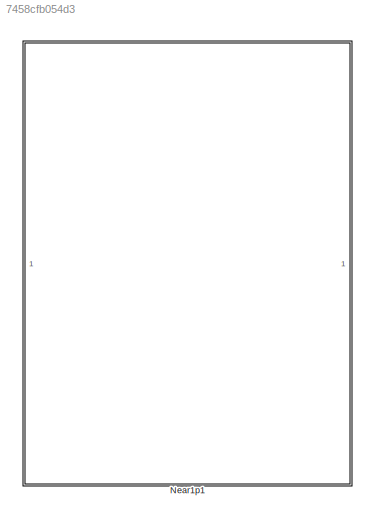
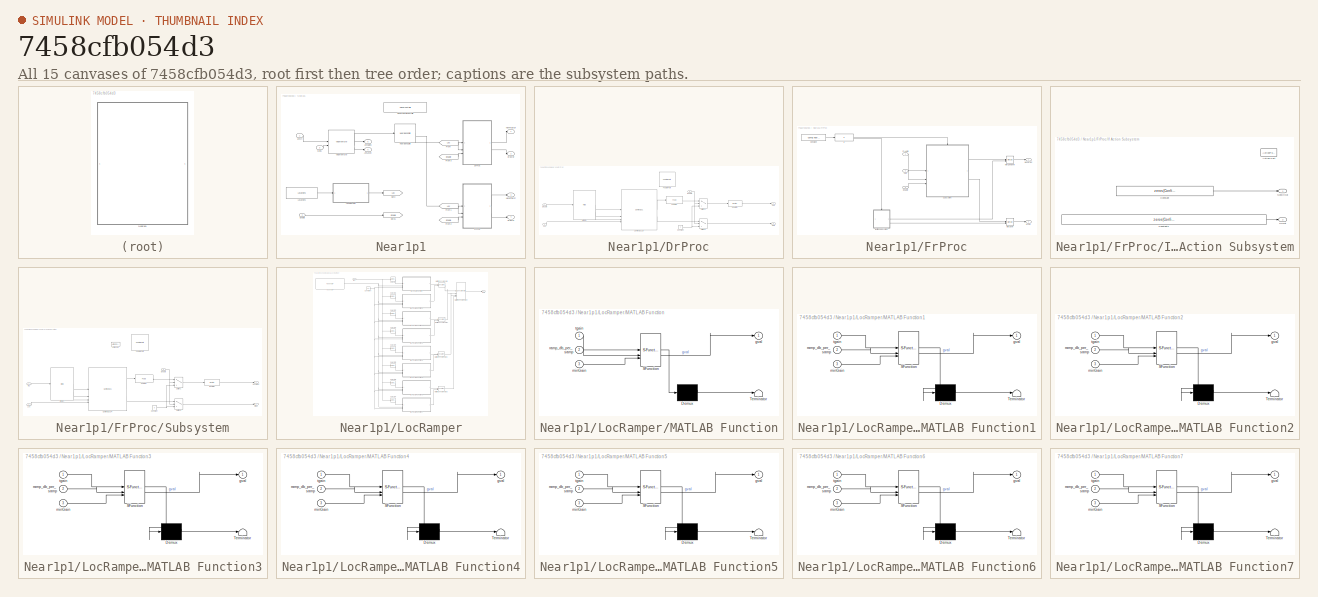
[diagram: thumbnail index - all 15 canvases of the model, root first then tree order]
MODEL slx_7458cfb054d3
KIND library
CONFIG AbsTol = auto
CONFIG EnableMultiTasking = off
CONFIG FixedStep = auto
CONFIG MaxStep = auto
CONFIG MinStep = auto
CONFIG RelTol = 1e-3
CONFIG SampleTimeConstraint = Unconstrained
CONFIG SolverName = VariableStepAuto
CONFIG StartTime = 0.0
CONFIG StopTime = 10.0
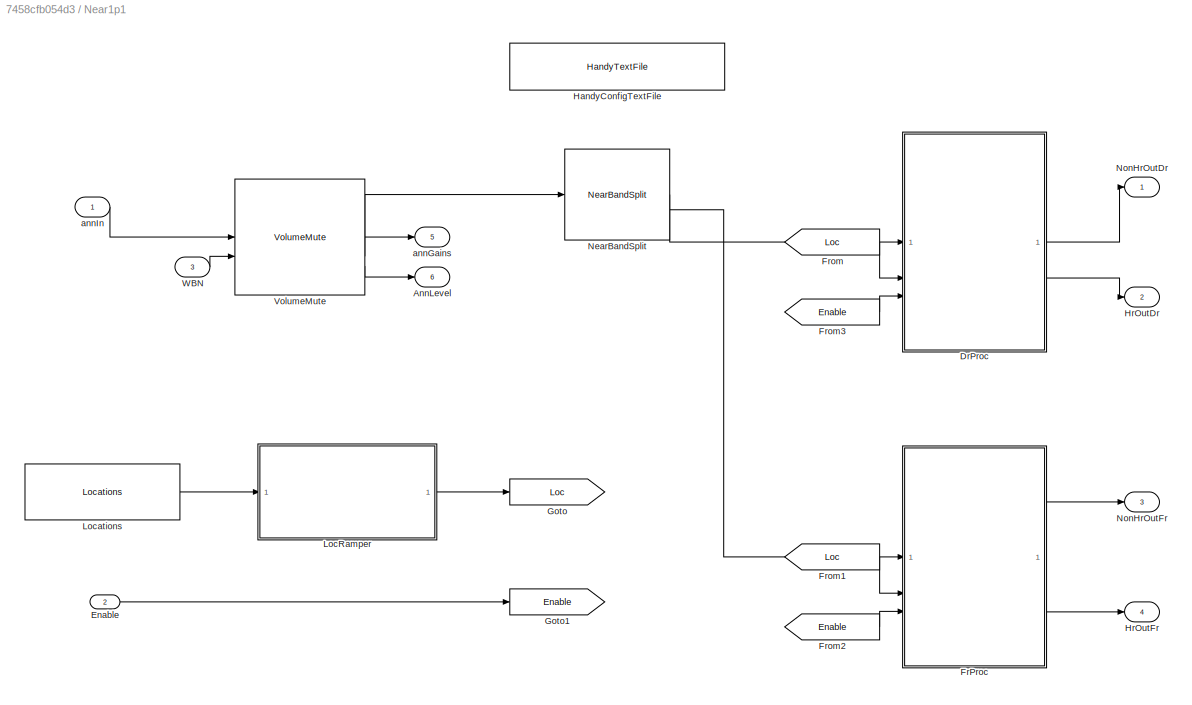
BLOCK [SubSystem] Near1p1
BLOCK [Outport] Near1p1/AnnLevel
  Port = 6
BLOCK [SubSystem] Near1p1/DrProc
BLOCK [Constant] Near1p1/DrProc/Constant
  OutDataTypeStr = single
  Value = 0
BLOCK [Inport] Near1p1/DrProc/DrAudio
BLOCK [Inport] Near1p1/DrProc/Enable
  Port = 3
BLOCK [Reference] Near1p1/DrProc/FeaturePath  REF=FeaturePath/FeaturePath
  SourceBlock = FeaturePath/FeaturePath
  SourceProductName = Bose Talaria
  SourceType = Talaria Feature Path
BLOCK [Reference] Near1p1/DrProc/FsEQDr  REF=FsEQLib/FsEq
  SourceBlock = FsEQLib/FsEq
  SourceType = FsEQ
BLOCK [Reference] Near1p1/DrProc/HrEQDr  REF=HrEQLib/HrEq
  SourceBlock = HrEQLib/HrEq
  SourceType = HrEQ
BLOCK [Inport] Near1p1/DrProc/Loc
  Port = 2
BLOCK [Outport] Near1p1/DrProc/Out1
BLOCK [Outport] Near1p1/DrProc/Out2
  Port = 2
BLOCK [Reference] Near1p1/DrProc/RouterDr  REF=Router/Router
  SourceBlock = Router/Router
  SourceType = Bose Router
BLOCK [Switch] Near1p1/DrProc/Switch1
  Criteria = u2 ~= 0
  InputSameDT = off
  SaturateOnIntegerOverflow = off
  Threshold = .5
  ZeroCross = off
BLOCK [Switch] Near1p1/DrProc/Switch3
  Criteria = u2 ~= 0
  InputSameDT = off
  SaturateOnIntegerOverflow = off
  Threshold = .5
  ZeroCross = off
BLOCK [Reference] Near1p1/DrProc/Upmixer1p1Dr  REF=Upmixer1p1Lib/Upmixer1p1
  SourceBlock = Upmixer1p1Lib/Upmixer1p1
BLOCK [Inport] Near1p1/Enable
  Port = 2
BLOCK [SubSystem] Near1p1/FrProc
BLOCK [Constant] Near1p1/FrProc/Constant
  Value = Config.NearWbAnnCount
BLOCK [Inport] Near1p1/FrProc/Enable
  Port = 3
BLOCK [Inport] Near1p1/FrProc/FrAudio
BLOCK [Outport] Near1p1/FrProc/HrOut
  Port = 2
BLOCK [If] Near1p1/FrProc/If
  IfExpression = u1 ~= 0
BLOCK [SubSystem] Near1p1/FrProc/If Action Subsystem
  TreatAsAtomicUnit = on
BLOCK [ActionPort] Near1p1/FrProc/If Action Subsystem/Action Port
  ActionPortLabel = else
BLOCK [Constant] Near1p1/FrProc/If Action Subsystem/Constant
  OutDataTypeStr = single
  Value = zeros(Config.FrameSize, Config.NearRouterNumOut)
BLOCK [Constant] Near1p1/FrProc/If Action Subsystem/Constant2
  OutDataTypeStr = single
  Value = zeros(Config.FrameSize, Config.NumHeadrestSpeakers*Config.FullRateNumChannelsPerHeadrest)
BLOCK [Outport] Near1p1/FrProc/If Action Subsystem/HrOut
  Port = 2
BLOCK [Outport] Near1p1/FrProc/If Action Subsystem/NonHrOut
BLOCK [Inport] Near1p1/FrProc/Loc
  Port = 2
BLOCK [Merge] Near1p1/FrProc/MergeHr
BLOCK [Merge] Near1p1/FrProc/MergeNonHr
BLOCK [Outport] Near1p1/FrProc/NonHrOut
BLOCK [SubSystem] Near1p1/FrProc/Subsystem
BLOCK [ActionPort] Near1p1/FrProc/Subsystem/Action Port
  ActionPortLabel = if(u1 ~= 0)
  PropagateVarSize = During execution
BLOCK [Constant] Near1p1/FrProc/Subsystem/Constant
  OutDataTypeStr = single
  Value = 0
BLOCK [Inport] Near1p1/FrProc/Subsystem/Enable
  Port = 3
BLOCK [Reference] Near1p1/FrProc/Subsystem/FeaturePath  REF=FeaturePath/FeaturePath
  SourceBlock = FeaturePath/FeaturePath
  SourceProductName = Bose Talaria
  SourceType = Talaria Feature Path
BLOCK [Reference] Near1p1/FrProc/Subsystem/FsEQFr  REF=FsEQLib/FsEq
  SourceBlock = FsEQLib/FsEq
  SourceType = FsEQ
BLOCK [Reference] Near1p1/FrProc/Subsystem/HrEQFr  REF=HrEQLib/HrEq
  SourceBlock = HrEQLib/HrEq
  SourceType = HrEQ
BLOCK [Outport] Near1p1/FrProc/Subsystem/HrOut
  Port = 2
BLOCK [Inport] Near1p1/FrProc/Subsystem/In2
BLOCK [Inport] Near1p1/FrProc/Subsystem/Loc
  Port = 2
BLOCK [Outport] Near1p1/FrProc/Subsystem/NonHrOut
BLOCK [Reference] Near1p1/FrProc/Subsystem/RouterFr  REF=Router/Router
  SourceBlock = Router/Router
  SourceType = Bose Router
BLOCK [Switch] Near1p1/FrProc/Subsystem/Switch1
  Criteria = u2 ~= 0
  InputSameDT = off
  SaturateOnIntegerOverflow = off
  Threshold = .5
  ZeroCross = off
BLOCK [Switch] Near1p1/FrProc/Subsystem/Switch3
  Criteria = u2 ~= 0
  InputSameDT = off
  SaturateOnIntegerOverflow = off
  Threshold = .5
  ZeroCross = off
BLOCK [Reference] Near1p1/FrProc/Subsystem/Upmixer1p1Fr  REF=Upmixer1p1Lib/Upmixer1p1
  SourceBlock = Upmixer1p1Lib/Upmixer1p1
BLOCK [From] Near1p1/From
  GotoTag = Loc
BLOCK [From] Near1p1/From1
  GotoTag = Loc
BLOCK [From] Near1p1/From2
  GotoTag = Enable
BLOCK [From] Near1p1/From3
  GotoTag = Enable
BLOCK [Goto] Near1p1/Goto
  GotoTag = Loc
BLOCK [Goto] Near1p1/Goto1
  GotoTag = Enable
BLOCK [Reference] Near1p1/HandyConfigTextFile  REF=HandyTextFile/HandyTextFile
  SourceBlock = HandyTextFile/HandyTextFile
  SourceProductName = Bose Talaria
  SourceType = Talaria Handy Text File
BLOCK [Outport] Near1p1/HrOutDr
  Port = 2
  VectorParamsAs1DForOutWhenUnconnected = off
BLOCK [Outport] Near1p1/HrOutFr
  Port = 4
  VectorParamsAs1DForOutWhenUnconnected = off
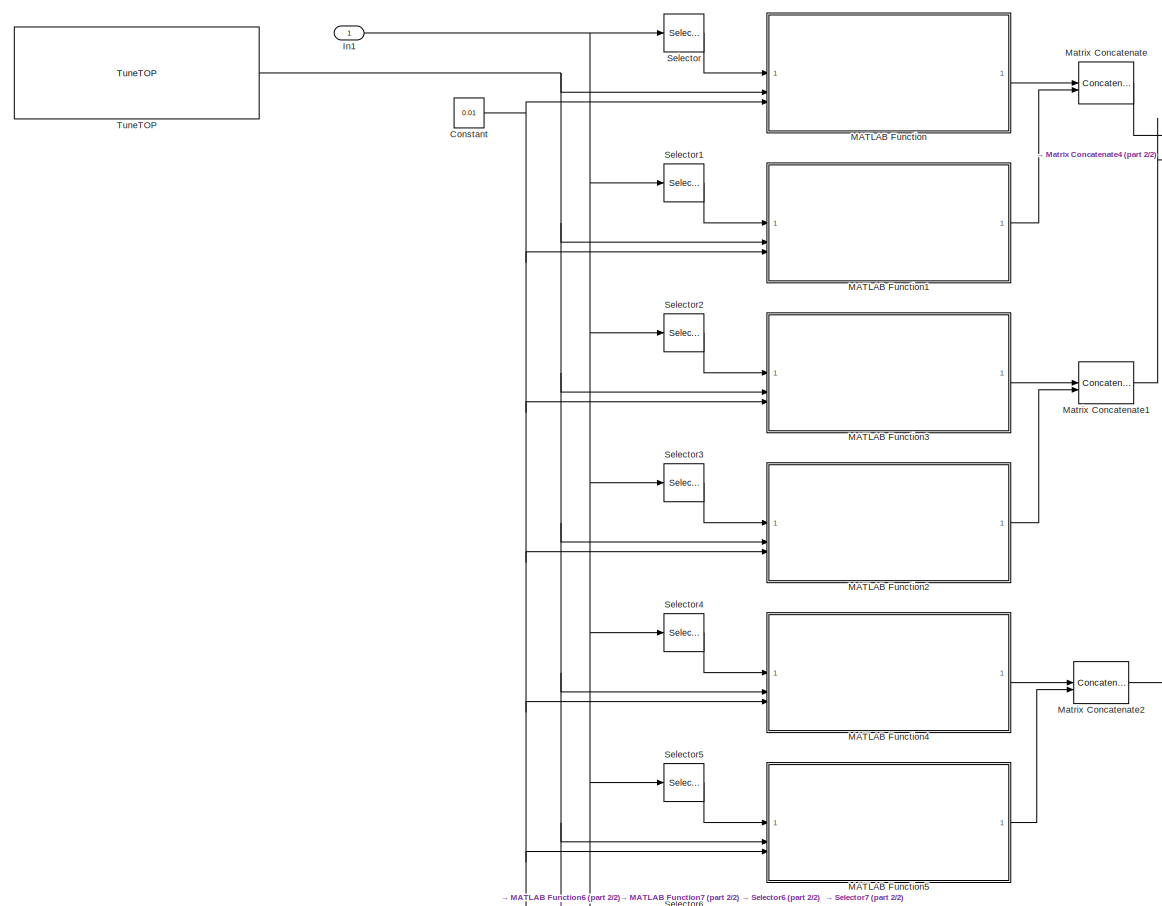
[diagram: Near1p1/LocRamper - part 1/2, most of the canvas]
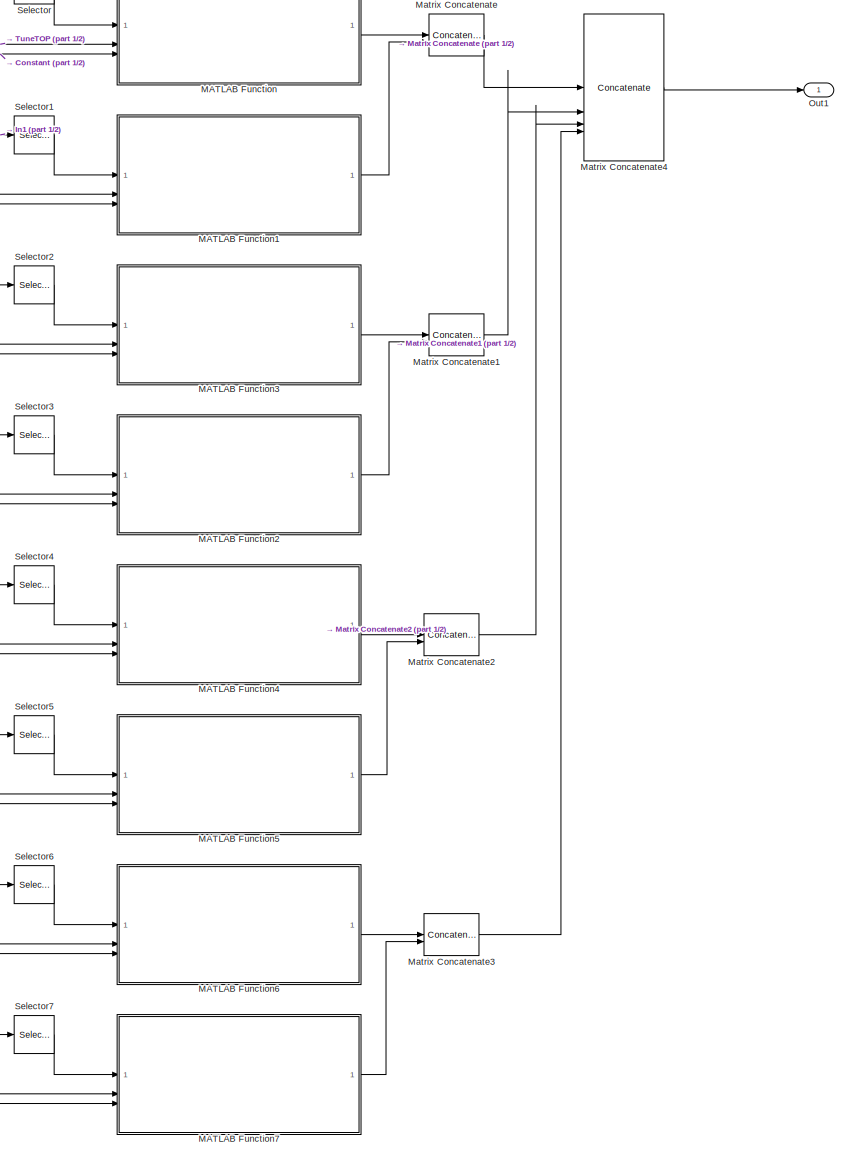
[diagram: Near1p1/LocRamper - part 2/2, right side, full height]
BLOCK [SubSystem] Near1p1/LocRamper
BLOCK [Constant] Near1p1/LocRamper/Constant
  Value = 0.01
BLOCK [Inport] Near1p1/LocRamper/In1
BLOCK [SubSystem] Near1p1/LocRamper/MATLAB Function
  ErrorFcn = Stateflow.Translate.translate
  LibrarySourceBlock = simulink/User-Defined\nFunctions/MATLAB Function
  PermitHierarchicalResolution = ExplicitOnly
  SFBlockType = MATLAB Function
  TreatAsAtomicUnit = on
BLOCK [Demux] Near1p1/LocRamper/MATLAB Function/ Demux 
  Outputs = 1
BLOCK [S-Function] Near1p1/LocRamper/MATLAB Function/ SFunction 
  EnableBusSupport = off
  FunctionName = sf_sfun
  Parameters = FRAME_SIZE
  PortCounts = [3 2]
  SFcnIsStateOwnerBlock = off
  SFunctionDeploymentMode = off
  Tag = Stateflow S-Function 3
BLOCK [Terminator] Near1p1/LocRamper/MATLAB Function/ Terminator 
BLOCK [Outport] Near1p1/LocRamper/MATLAB Function/gval
BLOCK [Inport] Near1p1/LocRamper/MATLAB Function/minGain
  Port = 3
BLOCK [Inport] Near1p1/LocRamper/MATLAB Function/ramp_db_per_samp
  Port = 2
BLOCK [Inport] Near1p1/LocRamper/MATLAB Function/tgain
BLOCK [SubSystem] Near1p1/LocRamper/MATLAB Function1
  ErrorFcn = Stateflow.Translate.translate
  LibrarySourceBlock = simulink/User-Defined\nFunctions/MATLAB Function
  PermitHierarchicalResolution = ExplicitOnly
  SFBlockType = MATLAB Function
  TreatAsAtomicUnit = on
BLOCK [Demux] Near1p1/LocRamper/MATLAB Function1/ Demux 
  Outputs = 1
BLOCK [S-Function] Near1p1/LocRamper/MATLAB Function1/ SFunction 
  EnableBusSupport = off
  FunctionName = sf_sfun
  Parameters = FRAME_SIZE
  PortCounts = [3 2]
  SFcnIsStateOwnerBlock = off
  SFunctionDeploymentMode = off
  Tag = Stateflow S-Function 4
BLOCK [Terminator] Near1p1/LocRamper/MATLAB Function1/ Terminator 
BLOCK [Outport] Near1p1/LocRamper/MATLAB Function1/gval
BLOCK [Inport] Near1p1/LocRamper/MATLAB Function1/minGain
  Port = 3
BLOCK [Inport] Near1p1/LocRamper/MATLAB Function1/ramp_db_per_samp
  Port = 2
BLOCK [Inport] Near1p1/LocRamper/MATLAB Function1/tgain
BLOCK [SubSystem] Near1p1/LocRamper/MATLAB Function2
  ErrorFcn = Stateflow.Translate.translate
  LibrarySourceBlock = simulink/User-Defined\nFunctions/MATLAB Function
  PermitHierarchicalResolution = ExplicitOnly
  SFBlockType = MATLAB Function
  TreatAsAtomicUnit = on
BLOCK [Demux] Near1p1/LocRamper/MATLAB Function2/ Demux 
  Outputs = 1
BLOCK [S-Function] Near1p1/LocRamper/MATLAB Function2/ SFunction 
  EnableBusSupport = off
  FunctionName = sf_sfun
  Parameters = FRAME_SIZE
  PortCounts = [3 2]
  SFcnIsStateOwnerBlock = off
  SFunctionDeploymentMode = off
  Tag = Stateflow S-Function 5
BLOCK [Terminator] Near1p1/LocRamper/MATLAB Function2/ Terminator 
BLOCK [Outport] Near1p1/LocRamper/MATLAB Function2/gval
BLOCK [Inport] Near1p1/LocRamper/MATLAB Function2/minGain
  Port = 3
BLOCK [Inport] Near1p1/LocRamper/MATLAB Function2/ramp_db_per_samp
  Port = 2
BLOCK [Inport] Near1p1/LocRamper/MATLAB Function2/tgain
BLOCK [SubSystem] Near1p1/LocRamper/MATLAB Function3
  ErrorFcn = Stateflow.Translate.translate
  LibrarySourceBlock = simulink/User-Defined\nFunctions/MATLAB Function
  PermitHierarchicalResolution = ExplicitOnly
  SFBlockType = MATLAB Function
  TreatAsAtomicUnit = on
BLOCK [Demux] Near1p1/LocRamper/MATLAB Function3/ Demux 
  Outputs = 1
BLOCK [S-Function] Near1p1/LocRamper/MATLAB Function3/ SFunction 
  EnableBusSupport = off
  FunctionName = sf_sfun
  Parameters = FRAME_SIZE
  PortCounts = [3 2]
  SFcnIsStateOwnerBlock = off
  SFunctionDeploymentMode = off
  Tag = Stateflow S-Function 6
BLOCK [Terminator] Near1p1/LocRamper/MATLAB Function3/ Terminator 
BLOCK [Outport] Near1p1/LocRamper/MATLAB Function3/gval
BLOCK [Inport] Near1p1/LocRamper/MATLAB Function3/minGain
  Port = 3
BLOCK [Inport] Near1p1/LocRamper/MATLAB Function3/ramp_db_per_samp
  Port = 2
BLOCK [Inport] Near1p1/LocRamper/MATLAB Function3/tgain
BLOCK [SubSystem] Near1p1/LocRamper/MATLAB Function4
  ErrorFcn = Stateflow.Translate.translate
  LibrarySourceBlock = simulink/User-Defined\nFunctions/MATLAB Function
  PermitHierarchicalResolution = ExplicitOnly
  SFBlockType = MATLAB Function
  TreatAsAtomicUnit = on
BLOCK [Demux] Near1p1/LocRamper/MATLAB Function4/ Demux 
  Outputs = 1
BLOCK [S-Function] Near1p1/LocRamper/MATLAB Function4/ SFunction 
  EnableBusSupport = off
  FunctionName = sf_sfun
  Parameters = FRAME_SIZE
  PortCounts = [3 2]
  SFcnIsStateOwnerBlock = off
  SFunctionDeploymentMode = off
  Tag = Stateflow S-Function 7
BLOCK [Terminator] Near1p1/LocRamper/MATLAB Function4/ Terminator 
BLOCK [Outport] Near1p1/LocRamper/MATLAB Function4/gval
BLOCK [Inport] Near1p1/LocRamper/MATLAB Function4/minGain
  Port = 3
BLOCK [Inport] Near1p1/LocRamper/MATLAB Function4/ramp_db_per_samp
  Port = 2
BLOCK [Inport] Near1p1/LocRamper/MATLAB Function4/tgain
BLOCK [SubSystem] Near1p1/LocRamper/MATLAB Function5
  ErrorFcn = Stateflow.Translate.translate
  LibrarySourceBlock = simulink/User-Defined\nFunctions/MATLAB Function
  PermitHierarchicalResolution = ExplicitOnly
  SFBlockType = MATLAB Function
  TreatAsAtomicUnit = on
BLOCK [Demux] Near1p1/LocRamper/MATLAB Function5/ Demux 
  Outputs = 1
BLOCK [S-Function] Near1p1/LocRamper/MATLAB Function5/ SFunction 
  EnableBusSupport = off
  FunctionName = sf_sfun
  Parameters = FRAME_SIZE
  PortCounts = [3 2]
  SFcnIsStateOwnerBlock = off
  SFunctionDeploymentMode = off
  Tag = Stateflow S-Function 8
BLOCK [Terminator] Near1p1/LocRamper/MATLAB Function5/ Terminator 
BLOCK [Outport] Near1p1/LocRamper/MATLAB Function5/gval
BLOCK [Inport] Near1p1/LocRamper/MATLAB Function5/minGain
  Port = 3
BLOCK [Inport] Near1p1/LocRamper/MATLAB Function5/ramp_db_per_samp
  Port = 2
BLOCK [Inport] Near1p1/LocRamper/MATLAB Function5/tgain
BLOCK [SubSystem] Near1p1/LocRamper/MATLAB Function6
  ErrorFcn = Stateflow.Translate.translate
  LibrarySourceBlock = simulink/User-Defined\nFunctions/MATLAB Function
  PermitHierarchicalResolution = ExplicitOnly
  SFBlockType = MATLAB Function
  TreatAsAtomicUnit = on
BLOCK [Demux] Near1p1/LocRamper/MATLAB Function6/ Demux 
  Outputs = 1
BLOCK [S-Function] Near1p1/LocRamper/MATLAB Function6/ SFunction 
  EnableBusSupport = off
  FunctionName = sf_sfun
  Parameters = FRAME_SIZE
  PortCounts = [3 2]
  SFcnIsStateOwnerBlock = off
  SFunctionDeploymentMode = off
  Tag = Stateflow S-Function 9
BLOCK [Terminator] Near1p1/LocRamper/MATLAB Function6/ Terminator 
BLOCK [Outport] Near1p1/LocRamper/MATLAB Function6/gval
BLOCK [Inport] Near1p1/LocRamper/MATLAB Function6/minGain
  Port = 3
BLOCK [Inport] Near1p1/LocRamper/MATLAB Function6/ramp_db_per_samp
  Port = 2
BLOCK [Inport] Near1p1/LocRamper/MATLAB Function6/tgain
BLOCK [SubSystem] Near1p1/LocRamper/MATLAB Function7
  ErrorFcn = Stateflow.Translate.translate
  LibrarySourceBlock = simulink/User-Defined\nFunctions/MATLAB Function
  PermitHierarchicalResolution = ExplicitOnly
  SFBlockType = MATLAB Function
  TreatAsAtomicUnit = on
BLOCK [Demux] Near1p1/LocRamper/MATLAB Function7/ Demux 
  Outputs = 1
BLOCK [S-Function] Near1p1/LocRamper/MATLAB Function7/ SFunction 
  EnableBusSupport = off
  FunctionName = sf_sfun
  Parameters = FRAME_SIZE
  PortCounts = [3 2]
  SFcnIsStateOwnerBlock = off
  SFunctionDeploymentMode = off
  Tag = Stateflow S-Function 10
BLOCK [Terminator] Near1p1/LocRamper/MATLAB Function7/ Terminator 
BLOCK [Outport] Near1p1/LocRamper/MATLAB Function7/gval
BLOCK [Inport] Near1p1/LocRamper/MATLAB Function7/minGain
  Port = 3
BLOCK [Inport] Near1p1/LocRamper/MATLAB Function7/ramp_db_per_samp
  Port = 2
BLOCK [Inport] Near1p1/LocRamper/MATLAB Function7/tgain
BLOCK [Concatenate] Near1p1/LocRamper/Matrix Concatenate
  Mode = Multidimensional array
BLOCK [Concatenate] Near1p1/LocRamper/Matrix Concatenate1
  Mode = Multidimensional array
BLOCK [Concatenate] Near1p1/LocRamper/Matrix Concatenate2
  Mode = Multidimensional array
BLOCK [Concatenate] Near1p1/LocRamper/Matrix Concatenate3
  Mode = Multidimensional array
BLOCK [Concatenate] Near1p1/LocRamper/Matrix Concatenate4
  ConcatenateDimension = 3
  Mode = Multidimensional array
  NumInputs = 4
BLOCK [Outport] Near1p1/LocRamper/Out1
BLOCK [Selector] Near1p1/LocRamper/Selector
  IndexOptions = Index vector (dialog),Index vector (dialog),Index vector (dialog)
  Indices = 1,1,1
  InputPortWidth = 3
  NumberOfDimensions = 3
  OutputSizes = 1,1,1
BLOCK [Selector] Near1p1/LocRamper/Selector1
  IndexOptions = Index vector (dialog),Index vector (dialog),Index vector (dialog)
  Indices = 2,1,1
  InputPortWidth = 3
  NumberOfDimensions = 3
  OutputSizes = 1,1,1
BLOCK [Selector] Near1p1/LocRamper/Selector2
  IndexOptions = Index vector (dialog),Index vector (dialog),Index vector (dialog)
  Indices = 1,1,2
  InputPortWidth = 3
  NumberOfDimensions = 3
  OutputSizes = 1,1,1
BLOCK [Selector] Near1p1/LocRamper/Selector3
  IndexOptions = Index vector (dialog),Index vector (dialog),Index vector (dialog)
  Indices = 2,1,2
  InputPortWidth = 3
  NumberOfDimensions = 3
  OutputSizes = 1,1,1
BLOCK [Selector] Near1p1/LocRamper/Selector4
  IndexOptions = Index vector (dialog),Index vector (dialog),Index vector (dialog)
  Indices = 1,1,3
  InputPortWidth = 3
  NumberOfDimensions = 3
  OutputSizes = 1,1,1
BLOCK [Selector] Near1p1/LocRamper/Selector5
  IndexOptions = Index vector (dialog),Index vector (dialog),Index vector (dialog)
  Indices = 2,1,3
  InputPortWidth = 3
  NumberOfDimensions = 3
  OutputSizes = 1,1,1
BLOCK [Selector] Near1p1/LocRamper/Selector6
  IndexOptions = Index vector (dialog),Index vector (dialog),Index vector (dialog)
  Indices = 1,1,4
  InputPortWidth = 3
  NumberOfDimensions = 3
  OutputSizes = 1,1,1
BLOCK [Selector] Near1p1/LocRamper/Selector7
  IndexOptions = Index vector (dialog),Index vector (dialog),Index vector (dialog)
  Indices = 2,1,4
  InputPortWidth = 3
  NumberOfDimensions = 3
  OutputSizes = 1,1,1
BLOCK [Reference] Near1p1/LocRamper/TuneTOP  REF=TuneVar/TuneTOP
  SourceBlock = TuneVar/TuneTOP
  SourceProductName = Bose Talaria
  SourceType = Talaria Trivial Tune TOP
BLOCK [Reference] Near1p1/Locations  REF=Upmixer1p1Lib/Locations
  SourceBlock = Upmixer1p1Lib/Locations
  SourceType = SubSystem
BLOCK [Reference] Near1p1/NearBandSplit  REF=NearBandSplitLib/NearBandSplit
  SourceBlock = NearBandSplitLib/NearBandSplit
  SourceType = NEAR BandSplit
BLOCK [Outport] Near1p1/NonHrOutDr
  VectorParamsAs1DForOutWhenUnconnected = off
BLOCK [Outport] Near1p1/NonHrOutFr
  Port = 3
  VectorParamsAs1DForOutWhenUnconnected = off
BLOCK [Reference] Near1p1/VolumeMute  REF=VolumeMute/VolumeMute
  SourceBlock = VolumeMute/VolumeMute
BLOCK [Inport] Near1p1/WBN
  Port = 3
BLOCK [Outport] Near1p1/annGains
  Port = 5
BLOCK [Inport] Near1p1/annIn
  OutDataTypeStr = single
NET Near1p1/DrProc/Constant:1 -> Near1p1/DrProc/Switch1:3, Near1p1/DrProc/Switch3:3
LINE Near1p1/DrProc/DrAudio:1 -> Near1p1/DrProc/HrEQDr:1
NET Near1p1/DrProc/Enable:1 -> Near1p1/DrProc/Switch1:2, Near1p1/DrProc/Switch3:2
LINE Near1p1/DrProc/FsEQDr:1 -> Near1p1/DrProc/Switch1:1
LINE Near1p1/DrProc/HrEQDr:1 -> Near1p1/DrProc/Upmixer1p1Dr:1
LINE Near1p1/DrProc/HrEQDr:2 -> Near1p1/DrProc/Upmixer1p1Dr:2
LINE Near1p1/DrProc/HrEQDr:3 -> Near1p1/DrProc/Upmixer1p1Dr:3
LINE Near1p1/DrProc/Loc:1 -> Near1p1/DrProc/Upmixer1p1Dr:4
LINE Near1p1/DrProc/RouterDr:1 -> Near1p1/DrProc/Out1:1
LINE Near1p1/DrProc/Switch1:1 -> Near1p1/DrProc/RouterDr:1
LINE Near1p1/DrProc/Switch3:1 -> Near1p1/DrProc/Out2:1
LINE Near1p1/DrProc/Upmixer1p1Dr:1 -> Near1p1/DrProc/FsEQDr:1
LINE Near1p1/DrProc/Upmixer1p1Dr:2 -> Near1p1/DrProc/Switch3:1
LINE Near1p1/DrProc:1 -> Near1p1/NonHrOutDr:1
LINE Near1p1/DrProc:2 -> Near1p1/HrOutDr:1
LINE Near1p1/Enable:1 -> Near1p1/Goto1:1
LINE Near1p1/FrProc/Constant:1 -> Near1p1/FrProc/If:1
LINE Near1p1/FrProc/Enable:1 -> Near1p1/FrProc/Subsystem:3
LINE Near1p1/FrProc/FrAudio:1 -> Near1p1/FrProc/Subsystem:1
LINE Near1p1/FrProc/If Action Subsystem/Constant2:1 -> Near1p1/FrProc/If Action Subsystem/HrOut:1
LINE Near1p1/FrProc/If Action Subsystem/Constant:1 -> Near1p1/FrProc/If Action Subsystem/NonHrOut:1
LINE Near1p1/FrProc/If Action Subsystem:1 -> Near1p1/FrProc/MergeNonHr:2
LINE Near1p1/FrProc/If Action Subsystem:2 -> Near1p1/FrProc/MergeHr:2
LINE Near1p1/FrProc/If:1 -> Near1p1/FrProc/Subsystem:ifaction
LINE Near1p1/FrProc/If:2 -> Near1p1/FrProc/If Action Subsystem:ifaction
LINE Near1p1/FrProc/Loc:1 -> Near1p1/FrProc/Subsystem:2
LINE Near1p1/FrProc/MergeHr:1 -> Near1p1/FrProc/HrOut:1
LINE Near1p1/FrProc/MergeNonHr:1 -> Near1p1/FrProc/NonHrOut:1
NET Near1p1/FrProc/Subsystem/Constant:1 -> Near1p1/FrProc/Subsystem/Switch1:3, Near1p1/FrProc/Subsystem/Switch3:3
NET Near1p1/FrProc/Subsystem/Enable:1 -> Near1p1/FrProc/Subsystem/Switch1:2, Near1p1/FrProc/Subsystem/Switch3:2
LINE Near1p1/FrProc/Subsystem/FsEQFr:1 -> Near1p1/FrProc/Subsystem/Switch1:1
LINE Near1p1/FrProc/Subsystem/HrEQFr:1 -> Near1p1/FrProc/Subsystem/Upmixer1p1Fr:1
LINE Near1p1/FrProc/Subsystem/HrEQFr:2 -> Near1p1/FrProc/Subsystem/Upmixer1p1Fr:2
LINE Near1p1/FrProc/Subsystem/HrEQFr:3 -> Near1p1/FrProc/Subsystem/Upmixer1p1Fr:3
LINE Near1p1/FrProc/Subsystem/In2:1 -> Near1p1/FrProc/Subsystem/HrEQFr:1
LINE Near1p1/FrProc/Subsystem/Loc:1 -> Near1p1/FrProc/Subsystem/Upmixer1p1Fr:4
LINE Near1p1/FrProc/Subsystem/RouterFr:1 -> Near1p1/FrProc/Subsystem/NonHrOut:1
LINE Near1p1/FrProc/Subsystem/Switch1:1 -> Near1p1/FrProc/Subsystem/RouterFr:1
LINE Near1p1/FrProc/Subsystem/Switch3:1 -> Near1p1/FrProc/Subsystem/HrOut:1
LINE Near1p1/FrProc/Subsystem/Upmixer1p1Fr:1 -> Near1p1/FrProc/Subsystem/FsEQFr:1
LINE Near1p1/FrProc/Subsystem/Upmixer1p1Fr:2 -> Near1p1/FrProc/Subsystem/Switch3:1
LINE Near1p1/FrProc/Subsystem:1 -> Near1p1/FrProc/MergeNonHr:1
LINE Near1p1/FrProc/Subsystem:2 -> Near1p1/FrProc/MergeHr:1
LINE Near1p1/FrProc:1 -> Near1p1/NonHrOutFr:1
LINE Near1p1/FrProc:2 -> Near1p1/HrOutFr:1
LINE Near1p1/From1:1 -> Near1p1/FrProc:2
LINE Near1p1/From2:1 -> Near1p1/FrProc:3
LINE Near1p1/From3:1 -> Near1p1/DrProc:3
LINE Near1p1/From:1 -> Near1p1/DrProc:2
NET Near1p1/LocRamper/Constant:1 -> Near1p1/LocRamper/MATLAB Function1:3, Near1p1/LocRamper/MATLAB Function2:3, Near1p1/LocRamper/MATLAB Function3:3, Near1p1/LocRamper/MATLAB Function4:3, Near1p1/LocRamper/MATLAB Function5:3, Near1p1/LocRamper/MATLAB Function6:3, Near1p1/LocRamper/MATLAB Function7:3, Near1p1/LocRamper/MATLAB Function:3
NET Near1p1/LocRamper/In1:1 -> Near1p1/LocRamper/Selector1:1, Near1p1/LocRamper/Selector2:1, Near1p1/LocRamper/Selector3:1, Near1p1/LocRamper/Selector4:1, Near1p1/LocRamper/Selector5:1, Near1p1/LocRamper/Selector6:1, Near1p1/LocRamper/Selector7:1, Near1p1/LocRamper/Selector:1
LINE Near1p1/LocRamper/MATLAB Function1:1 -> Near1p1/LocRamper/Matrix Concatenate:2
LINE Near1p1/LocRamper/MATLAB Function2:1 -> Near1p1/LocRamper/Matrix Concatenate1:2
LINE Near1p1/LocRamper/MATLAB Function3:1 -> Near1p1/LocRamper/Matrix Concatenate1:1
LINE Near1p1/LocRamper/MATLAB Function4:1 -> Near1p1/LocRamper/Matrix Concatenate2:1
LINE Near1p1/LocRamper/MATLAB Function5:1 -> Near1p1/LocRamper/Matrix Concatenate2:2
LINE Near1p1/LocRamper/MATLAB Function6:1 -> Near1p1/LocRamper/Matrix Concatenate3:1
LINE Near1p1/LocRamper/MATLAB Function7:1 -> Near1p1/LocRamper/Matrix Concatenate3:2
LINE Near1p1/LocRamper/MATLAB Function:1 -> Near1p1/LocRamper/Matrix Concatenate:1
LINE Near1p1/LocRamper/Matrix Concatenate1:1 -> Near1p1/LocRamper/Matrix Concatenate4:2
LINE Near1p1/LocRamper/Matrix Concatenate2:1 -> Near1p1/LocRamper/Matrix Concatenate4:3
LINE Near1p1/LocRamper/Matrix Concatenate3:1 -> Near1p1/LocRamper/Matrix Concatenate4:4
LINE Near1p1/LocRamper/Matrix Concatenate4:1 -> Near1p1/LocRamper/Out1:1
LINE Near1p1/LocRamper/Matrix Concatenate:1 -> Near1p1/LocRamper/Matrix Concatenate4:1
LINE Near1p1/LocRamper/Selector1:1 -> Near1p1/LocRamper/MATLAB Function1:1
LINE Near1p1/LocRamper/Selector2:1 -> Near1p1/LocRamper/MATLAB Function3:1
LINE Near1p1/LocRamper/Selector3:1 -> Near1p1/LocRamper/MATLAB Function2:1
LINE Near1p1/LocRamper/Selector4:1 -> Near1p1/LocRamper/MATLAB Function4:1
LINE Near1p1/LocRamper/Selector5:1 -> Near1p1/LocRamper/MATLAB Function5:1
LINE Near1p1/LocRamper/Selector6:1 -> Near1p1/LocRamper/MATLAB Function6:1
LINE Near1p1/LocRamper/Selector7:1 -> Near1p1/LocRamper/MATLAB Function7:1
LINE Near1p1/LocRamper/Selector:1 -> Near1p1/LocRamper/MATLAB Function:1
NET Near1p1/LocRamper/TuneTOP:1 -> Near1p1/LocRamper/MATLAB Function1:2, Near1p1/LocRamper/MATLAB Function2:2, Near1p1/LocRamper/MATLAB Function3:2, Near1p1/LocRamper/MATLAB Function4:2, Near1p1/LocRamper/MATLAB Function5:2, Near1p1/LocRamper/MATLAB Function6:2, Near1p1/LocRamper/MATLAB Function7:2, Near1p1/LocRamper/MATLAB Function:2
LINE Near1p1/LocRamper:1 -> Near1p1/Goto:1
LINE Near1p1/Locations:1 -> Near1p1/LocRamper:1
LINE Near1p1/NearBandSplit:1 -> Near1p1/DrProc:1
LINE Near1p1/NearBandSplit:2 -> Near1p1/FrProc:1
LINE Near1p1/VolumeMute:1 -> Near1p1/NearBandSplit:1
LINE Near1p1/VolumeMute:2 -> Near1p1/annGains:1
LINE Near1p1/VolumeMute:3 -> Near1p1/AnnLevel:1
LINE Near1p1/WBN:1 -> Near1p1/VolumeMute:2
LINE Near1p1/annIn:1 -> Near1p1/VolumeMute:1
note: NET lines group one-source signal fan-out (src -> all destinations, sorted); 1:1 wires keep LINE
CHART Near1p1/LocRamper/MATLAB Function states=1 transitions=1
  STATE_LABEL 'eML_blk_kernel()'
  STATE_LABEL 'SCRIPT:\nfunction gval = ramp(tgain, ramp_db_per_samp, minGain, FRAME_SIZE)\n% FRAME_SIZE = 32;\n% Ramp coefficients\npersistent lastTGain;\nif (isempty(lastTGain)), lastTGain = cast(tgain + 1, class(tgain)); end\npersistent lastG;\nif (isempty(lastG)), lastG = cast(0, class(tgain)); end\n% Ramp coefficients\npersistent upCoeff;\nif (isempty(upCoeff)), upCoeff = cast(0, class(tgain)); end\npersistent upCoeff...<+2005ch>'  <repeated x8 — deduplicated; at blocks: MATLAB Function, MATLAB Function1, MATLAB Function2, MATLAB Function3, MATLAB Function4, MATLAB Function5, MATLAB Function6, MATLAB Function7>
CHART Near1p1/LocRamper/MATLAB Function1 states=1 transitions=1
  STATE_LABEL 'eML_blk_kernel()'
CHART Near1p1/LocRamper/MATLAB Function2 states=1 transitions=1
  STATE_LABEL 'eML_blk_kernel()'
CHART Near1p1/LocRamper/MATLAB Function3 states=1 transitions=1
  STATE_LABEL 'eML_blk_kernel()'
CHART Near1p1/LocRamper/MATLAB Function4 states=1 transitions=1
  STATE_LABEL 'eML_blk_kernel()'
CHART Near1p1/LocRamper/MATLAB Function5 states=1 transitions=1
  STATE_LABEL 'eML_blk_kernel()'
CHART Near1p1/LocRamper/MATLAB Function6 states=1 transitions=1
  STATE_LABEL 'eML_blk_kernel()'
CHART Near1p1/LocRamper/MATLAB Function7 states=1 transitions=1
  STATE_LABEL 'eML_blk_kernel()'
CHART  states=0 transitions=0
CHART  states=0 transitions=0
CHART  states=0 transitions=0
CHART  states=0 transitions=0
CHART  states=0 transitions=0
CHART  states=0 transitions=0
CHART  states=0 transitions=0
CHART  states=0 transitions=0
